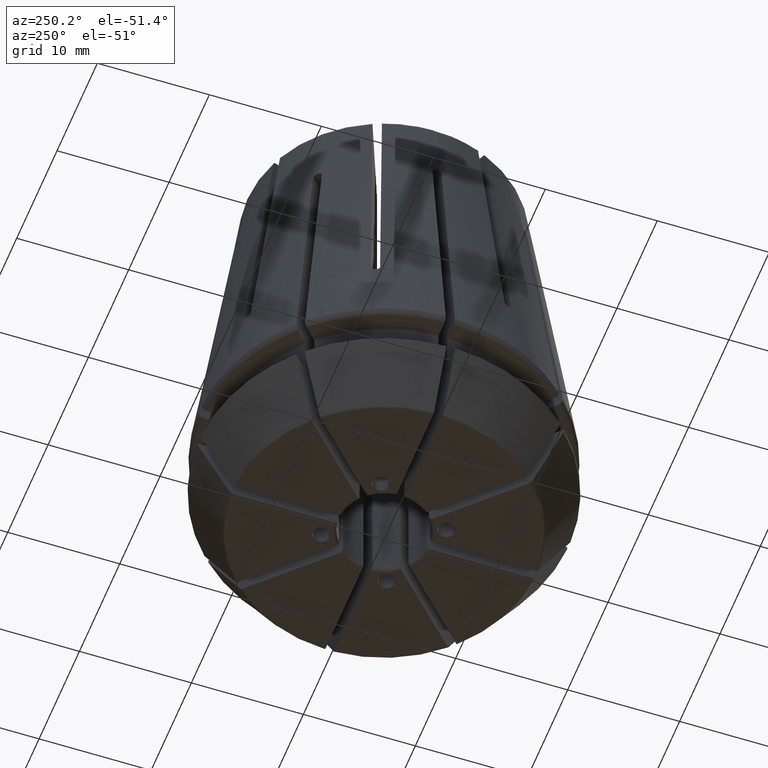
[diagram: clean part render]
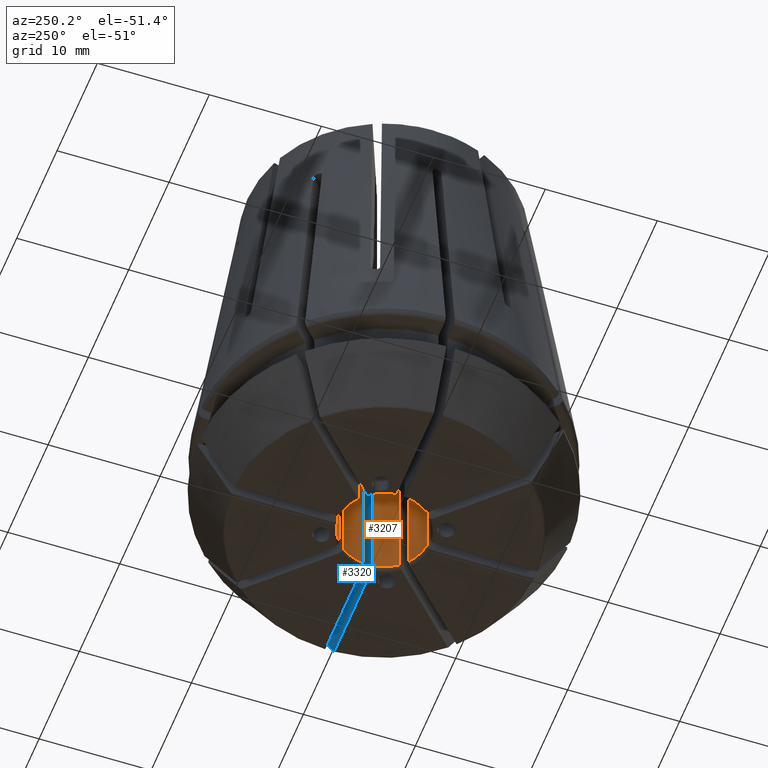
[diagram: same view with the hole feature highlighted: cylindrical wall and planar end face, labeled with their STEP entity ids]
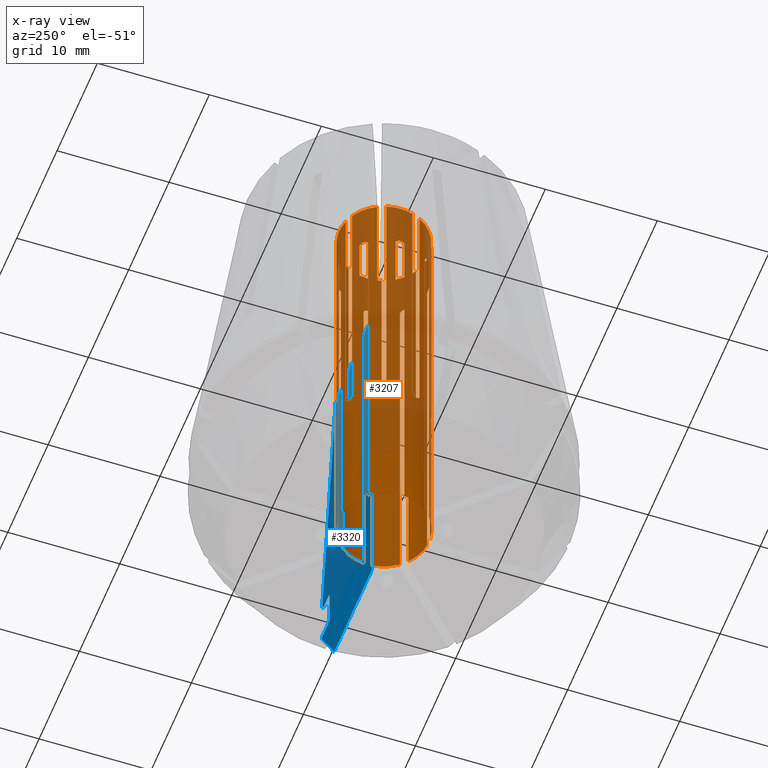
[diagram: x-ray of the same camera — body ghosted, the hole faces saturated]
A machine part, auxiliary view. The highlighted faces form one hole feature of diameter 8 mm: the cylindrical wall (entity #3207, orange) and its adjacent planar end face (entity #3320, blue) — they share a circular edge in the B-rep.
The next image is the same camera in x-ray (body ghosted, the hole faces saturated) — the bore reads through the body.
Wall:
#84=LINE('',#4960,#228);
#85=LINE('',#4969,#229);
#86=LINE('',#4973,#230);
#87=LINE('',#4981,#231);
#88=LINE('',#4985,#232);
#89=LINE('',#4993,#233);
#90=LINE('',#4997,#234);
#91=LINE('',#5005,#235);
#92=LINE('',#5009,#236);
#93=LINE('',#5017,#237);
#94=LINE('',#5021,#238);
#95=LINE('',#5029,#239);
#96=LINE('',#5033,#240);
#97=LINE('',#5041,#241);
#98=LINE('',#5045,#242);
#99=LINE('',#5053,#243);
#100=LINE('',#5056,#244);
#101=LINE('',#5065,#245);
#102=LINE('',#5069,#246);
#103=LINE('',#5077,#247);
#104=LINE('',#5081,#248);
#105=LINE('',#5089,#249);
#106=LINE('',#5093,#250);
#107=LINE('',#5101,#251);
#108=LINE('',#5105,#252);
#109=LINE('',#5113,#253);
#110=LINE('',#5117,#254);
#111=LINE('',#5125,#255);
#112=LINE('',#5129,#256);
#113=LINE('',#5137,#257);
#114=LINE('',#5141,#258);
#115=LINE('',#5149,#259);
#228=VECTOR('',#3813,1000.);
#229=VECTOR('',#3814,1000.);
#230=VECTOR('',#3817,1000.);
#231=VECTOR('',#3818,1000.);
#232=VECTOR('',#3821,1000.);
#233=VECTOR('',#3822,1000.);
#234=VECTOR('',#3825,1000.);
#235=VECTOR('',#3826,1000.);
#236=VECTOR('',#3829,1000.);
#237=VECTOR('',#3830,1000.);
#238=VECTOR('',#3833,1000.);
#239=VECTOR('',#3834,1000.);
#240=VECTOR('',#3837,1000.);
#241=VECTOR('',#3838,1000.);
#242=VECTOR('',#3841,1000.);
#243=VECTOR('',#3842,1000.);
#244=VECTOR('',#3845,1000.);
#245=VECTOR('',#3846,1000.);
#246=VECTOR('',#3849,1000.);
#247=VECTOR('',#3850,1000.);
#248=VECTOR('',#3853,1000.);
#249=VECTOR('',#3854,1000.);
#250=VECTOR('',#3857,1000.);
#251=VECTOR('',#3858,1000.);
#252=VECTOR('',#3861,1000.);
#253=VECTOR('',#3862,1000.);
#254=VECTOR('',#3865,1000.);
#255=VECTOR('',#3866,1000.);
#256=VECTOR('',#3869,1000.);
#257=VECTOR('',#3870,1000.);
#258=VECTOR('',#3873,1000.);
#259=VECTOR('',#3874,1000.);
#372=CYLINDRICAL_SURFACE('',#3422,4.);
#470=B_SPLINE_CURVE_WITH_KNOTS('',3,(#4963,#4964,#4965,#4966,#4967),
 .UNSPECIFIED.,.F.,.F.,(4,1,4),(-0.000624974076948497,9.21077996328661E-9,
0.000624992498508424),.UNSPECIFIED.);
#471=B_SPLINE_CURVE_WITH_KNOTS('',3,(#4975,#4976,#4977,#4978,#4979),
 .UNSPECIFIED.,.F.,.F.,(4,1,4),(-0.000624974076948496,9.21077996182294E-9,
0.000624992498508419),.UNSPECIFIED.);
#472=B_SPLINE_CURVE_WITH_KNOTS('',3,(#4987,#4988,#4989,#4990,#4991),
 .UNSPECIFIED.,.F.,.F.,(4,1,4),(-0.000624974076948497,9.21077996355766E-9,
0.000624992498508424),.UNSPECIFIED.);
#473=B_SPLINE_CURVE_WITH_KNOTS('',3,(#4999,#5000,#5001,#5002,#5003),
 .UNSPECIFIED.,.F.,.F.,(4,1,4),(-0.000624974076948506,9.21077996193136E-9,
0.00062499249850843),.UNSPECIFIED.);
#474=B_SPLINE_CURVE_WITH_KNOTS('',3,(#5011,#5012,#5013,#5014,#5015),
 .UNSPECIFIED.,.F.,.F.,(4,1,4),(-0.000624974076948499,9.21077996296135E-9,
0.000624992498508425),.UNSPECIFIED.);
#475=B_SPLINE_CURVE_WITH_KNOTS('',3,(#5023,#5024,#5025,#5026,#5027),
 .UNSPECIFIED.,.F.,.F.,(4,1,4),(-0.000624974076948497,9.21077997201444E-9,
0.000624992498508441),.UNSPECIFIED.);
#476=B_SPLINE_CURVE_WITH_KNOTS('',3,(#5035,#5036,#5037,#5038,#5039),
 .UNSPECIFIED.,.F.,.F.,(4,1,4),(-0.000624974076948498,9.21077996279872E-9,
0.000624992498508424),.UNSPECIFIED.);
#477=B_SPLINE_CURVE_WITH_KNOTS('',3,(#5047,#5048,#5049,#5050,#5051),
 .UNSPECIFIED.,.F.,.F.,(4,1,4),(-0.000624974076948511,9.21077996523818E-9,
0.000624992498508441),.UNSPECIFIED.);
#478=B_SPLINE_CURVE_WITH_KNOTS('',3,(#5059,#5060,#5061,#5062,#5063),
 .UNSPECIFIED.,.F.,.F.,(4,1,4),(-0.000624974076948512,9.21077996128084E-9,
0.000624992498508435),.UNSPECIFIED.);
#479=B_SPLINE_CURVE_WITH_KNOTS('',3,(#5071,#5072,#5073,#5074,#5075),
 .UNSPECIFIED.,.F.,.F.,(4,1,4),(-0.000624974076948523,9.2107799664308E-9,
0.000624992498508456),.UNSPECIFIED.);
#480=B_SPLINE_CURVE_WITH_KNOTS('',3,(#5083,#5084,#5085,#5086,#5087),
 .UNSPECIFIED.,.F.,.F.,(4,1,4),(-0.000624974076948522,9.21077996681027E-9,
0.000624992498508456),.UNSPECIFIED.);
#481=B_SPLINE_CURVE_WITH_KNOTS('',3,(#5095,#5096,#5097,#5098,#5099),
 .UNSPECIFIED.,.F.,.F.,(4,1,4),(-0.000624974076948522,9.21077996610554E-9,
0.000624992498508454),.UNSPECIFIED.);
#482=B_SPLINE_CURVE_WITH_KNOTS('',3,(#5107,#5108,#5109,#5110,#5111),
 .UNSPECIFIED.,.F.,.F.,(4,1,4),(-0.000624974076948523,9.21077996632238E-9,
0.000624992498508456),.UNSPECIFIED.);
#483=B_SPLINE_CURVE_WITH_KNOTS('',3,(#5119,#5120,#5121,#5122,#5123),
 .UNSPECIFIED.,.F.,.F.,(4,1,4),(-0.000624974076948513,9.21077996171452E-9,
0.000624992498508437),.UNSPECIFIED.);
#484=B_SPLINE_CURVE_WITH_KNOTS('',3,(#5131,#5132,#5133,#5134,#5135),
 .UNSPECIFIED.,.F.,.F.,(4,1,4),(-0.000624974076948512,9.21077996171452E-9,
0.000624992498508435),.UNSPECIFIED.);
#485=B_SPLINE_CURVE_WITH_KNOTS('',3,(#5143,#5144,#5145,#5146,#5147),
 .UNSPECIFIED.,.F.,.F.,(4,1,4),(-0.000624974076948512,9.21077996128084E-9,
0.000624992498508435),.UNSPECIFIED.);
#706=ORIENTED_EDGE('',*,*,#1766,.T.);
#707=ORIENTED_EDGE('',*,*,#1767,.T.);
#708=ORIENTED_EDGE('',*,*,#1768,.F.);
#709=ORIENTED_EDGE('',*,*,#1769,.T.);
#710=ORIENTED_EDGE('',*,*,#1770,.T.);
#711=ORIENTED_EDGE('',*,*,#1771,.T.);
#712=ORIENTED_EDGE('',*,*,#1772,.F.);
#713=ORIENTED_EDGE('',*,*,#1773,.T.);
#714=ORIENTED_EDGE('',*,*,#1774,.T.);
#715=ORIENTED_EDGE('',*,*,#1775,.T.);
#716=ORIENTED_EDGE('',*,*,#1776,.F.);
#717=ORIENTED_EDGE('',*,*,#1777,.T.);
#718=ORIENTED_EDGE('',*,*,#1778,.T.);
#719=ORIENTED_EDGE('',*,*,#1779,.T.);
#720=ORIENTED_EDGE('',*,*,#1780,.F.);
#721=ORIENTED_EDGE('',*,*,#1781,.T.);
#722=ORIENTED_EDGE('',*,*,#1782,.F.);
#723=ORIENTED_EDGE('',*,*,#1783,.T.);
#724=ORIENTED_EDGE('',*,*,#1784,.T.);
#725=ORIENTED_EDGE('',*,*,#1785,.T.);
#726=ORIENTED_EDGE('',*,*,#1786,.F.);
#727=ORIENTED_EDGE('',*,*,#1787,.T.);
#728=ORIENTED_EDGE('',*,*,#1788,.T.);
#729=ORIENTED_EDGE('',*,*,#1789,.T.);
#730=ORIENTED_EDGE('',*,*,#1790,.F.);
#731=ORIENTED_EDGE('',*,*,#1791,.T.);
#732=ORIENTED_EDGE('',*,*,#1792,.T.);
#733=ORIENTED_EDGE('',*,*,#1793,.T.);
#734=ORIENTED_EDGE('',*,*,#1794,.F.);
#735=ORIENTED_EDGE('',*,*,#1795,.T.);
#736=ORIENTED_EDGE('',*,*,#1796,.T.);
#737=ORIENTED_EDGE('',*,*,#1797,.T.);
#738=ORIENTED_EDGE('',*,*,#1798,.F.);
#739=ORIENTED_EDGE('',*,*,#1799,.T.);
#740=ORIENTED_EDGE('',*,*,#1800,.T.);
#741=ORIENTED_EDGE('',*,*,#1801,.T.);
#742=ORIENTED_EDGE('',*,*,#1802,.T.);
#743=ORIENTED_EDGE('',*,*,#1803,.T.);
#744=ORIENTED_EDGE('',*,*,#1804,.F.);
#745=ORIENTED_EDGE('',*,*,#1805,.T.);
#746=ORIENTED_EDGE('',*,*,#1806,.T.);
#747=ORIENTED_EDGE('',*,*,#1807,.T.);
#748=ORIENTED_EDGE('',*,*,#1808,.F.);
#749=ORIENTED_EDGE('',*,*,#1809,.T.);
#750=ORIENTED_EDGE('',*,*,#1810,.T.);
#751=ORIENTED_EDGE('',*,*,#1811,.T.);
#752=ORIENTED_EDGE('',*,*,#1812,.F.);
#753=ORIENTED_EDGE('',*,*,#1813,.T.);
#754=ORIENTED_EDGE('',*,*,#1814,.T.);
#755=ORIENTED_EDGE('',*,*,#1815,.T.);
#756=ORIENTED_EDGE('',*,*,#1816,.F.);
#757=ORIENTED_EDGE('',*,*,#1817,.T.);
#758=ORIENTED_EDGE('',*,*,#1818,.F.);
#759=ORIENTED_EDGE('',*,*,#1819,.T.);
#760=ORIENTED_EDGE('',*,*,#1820,.T.);
#761=ORIENTED_EDGE('',*,*,#1821,.T.);
#762=ORIENTED_EDGE('',*,*,#1822,.F.);
#763=ORIENTED_EDGE('',*,*,#1823,.T.);
#764=ORIENTED_EDGE('',*,*,#1824,.T.);
#765=ORIENTED_EDGE('',*,*,#1825,.T.);
#766=ORIENTED_EDGE('',*,*,#1826,.F.);
#767=ORIENTED_EDGE('',*,*,#1827,.T.);
#768=ORIENTED_EDGE('',*,*,#1828,.T.);
#769=ORIENTED_EDGE('',*,*,#1829,.T.);
#1766=EDGE_CURVE('',#2294,#2295,#84,.T.);
#1767=EDGE_CURVE('',#2295,#2296,#470,.T.);
#1768=EDGE_CURVE('',#2297,#2296,#85,.T.);
#1769=EDGE_CURVE('',#2297,#2298,#2602,.T.);
#1770=EDGE_CURVE('',#2298,#2299,#86,.T.);
#1771=EDGE_CURVE('',#2299,#2300,#471,.T.);
#1772=EDGE_CURVE('',#2301,#2300,#87,.T.);
#1773=EDGE_CURVE('',#2301,#2302,#2603,.T.);
#1774=EDGE_CURVE('',#2302,#2303,#88,.T.);
#1775=EDGE_CURVE('',#2303,#2304,#472,.T.);
#1776=EDGE_CURVE('',#2305,#2304,#89,.T.);
#1777=EDGE_CURVE('',#2305,#2306,#2604,.T.);
#1778=EDGE_CURVE('',#2306,#2307,#90,.T.);
#1779=EDGE_CURVE('',#2307,#2308,#473,.T.);
#1780=EDGE_CURVE('',#2309,#2308,#91,.T.);
#1781=EDGE_CURVE('',#2309,#2310,#2605,.T.);
#1782=EDGE_CURVE('',#2311,#2310,#92,.F.);
#1783=EDGE_CURVE('',#2311,#2312,#474,.T.);
#1784=EDGE_CURVE('',#2312,#2313,#93,.F.);
#1785=EDGE_CURVE('',#2313,#2314,#2606,.T.);
#1786=EDGE_CURVE('',#2315,#2314,#94,.F.);
#1787=EDGE_CURVE('',#2315,#2316,#475,.T.);
#1788=EDGE_CURVE('',#2316,#2317,#95,.F.);
#1789=EDGE_CURVE('',#2317,#2318,#2607,.T.);
#1790=EDGE_CURVE('',#2319,#2318,#96,.F.);
#1791=EDGE_CURVE('',#2319,#2320,#476,.T.);
#1792=EDGE_CURVE('',#2320,#2321,#97,.F.);
#1793=EDGE_CURVE('',#2321,#2322,#2608,.T.);
#1794=EDGE_CURVE('',#2323,#2322,#98,.F.);
#1795=EDGE_CURVE('',#2323,#2324,#477,.T.);
#1796=EDGE_CURVE('',#2324,#2325,#99,.F.);
#1797=EDGE_CURVE('',#2325,#2294,#2609,.T.);
#1798=EDGE_CURVE('',#2326,#2327,#100,.T.);
#1799=EDGE_CURVE('',#2326,#2328,#478,.T.);
#1800=EDGE_CURVE('',#2328,#2329,#101,.T.);
#1801=EDGE_CURVE('',#2329,#2330,#2610,.T.);
#1802=EDGE_CURVE('',#2330,#2331,#102,.F.);
#1803=EDGE_CURVE('',#2331,#2332,#479,.T.);
#1804=EDGE_CURVE('',#2333,#2332,#103,.F.);
#1805=EDGE_CURVE('',#2333,#2334,#2611,.T.);
#1806=EDGE_CURVE('',#2334,#2335,#104,.F.);
#1807=EDGE_CURVE('',#2335,#2336,#480,.T.);
#1808=EDGE_CURVE('',#2337,#2336,#105,.F.);
#1809=EDGE_CURVE('',#2337,#2338,#2612,.T.);
#1810=EDGE_CURVE('',#2338,#2339,#106,.F.);
#1811=EDGE_CURVE('',#2339,#2340,#481,.T.);
#1812=EDGE_CURVE('',#2341,#2340,#107,.F.);
#1813=EDGE_CURVE('',#2341,#2342,#2613,.T.);
#1814=EDGE_CURVE('',#2342,#2343,#108,.F.);
#1815=EDGE_CURVE('',#2343,#2344,#482,.T.);
#1816=EDGE_CURVE('',#2345,#2344,#109,.F.);
#1817=EDGE_CURVE('',#2345,#2346,#2614,.T.);
#1818=EDGE_CURVE('',#2347,#2346,#110,.T.);
#1819=EDGE_CURVE('',#2347,#2348,#483,.T.);
#1820=EDGE_CURVE('',#2348,#2349,#111,.T.);
#1821=EDGE_CURVE('',#2349,#2350,#2615,.T.);
#1822=EDGE_CURVE('',#2351,#2350,#112,.T.);
#1823=EDGE_CURVE('',#2351,#2352,#484,.T.);
#1824=EDGE_CURVE('',#2352,#2353,#113,.T.);
#1825=EDGE_CURVE('',#2353,#2354,#2616,.T.);
#1826=EDGE_CURVE('',#2355,#2354,#114,.T.);
#1827=EDGE_CURVE('',#2355,#2356,#485,.T.);
#1828=EDGE_CURVE('',#2356,#2357,#115,.T.);
#1829=EDGE_CURVE('',#2357,#2327,#2617,.T.);
#2294=VERTEX_POINT('',#4961);
#2295=VERTEX_POINT('',#4962);
#2296=VERTEX_POINT('',#4968);
#2297=VERTEX_POINT('',#4970);
#2298=VERTEX_POINT('',#4972);
#2299=VERTEX_POINT('',#4974);
#2300=VERTEX_POINT('',#4980);
#2301=VERTEX_POINT('',#4982);
#2302=VERTEX_POINT('',#4984);
#2303=VERTEX_POINT('',#4986);
#2304=VERTEX_POINT('',#4992);
#2305=VERTEX_POINT('',#4994);
#2306=VERTEX_POINT('',#4996);
#2307=VERTEX_POINT('',#4998);
#2308=VERTEX_POINT('',#5004);
#2309=VERTEX_POINT('',#5006);
#2310=VERTEX_POINT('',#5008);
#2311=VERTEX_POINT('',#5010);
#2312=VERTEX_POINT('',#5016);
#2313=VERTEX_POINT('',#5018);
#2314=VERTEX_POINT('',#5020);
#2315=VERTEX_POINT('',#5022);
#2316=VERTEX_POINT('',#5028);
#2317=VERTEX_POINT('',#5030);
#2318=VERTEX_POINT('',#5032);
#2319=VERTEX_POINT('',#5034);
#2320=VERTEX_POINT('',#5040);
#2321=VERTEX_POINT('',#5042);
#2322=VERTEX_POINT('',#5044);
#2323=VERTEX_POINT('',#5046);
#2324=VERTEX_POINT('',#5052);
#2325=VERTEX_POINT('',#5054);
#2326=VERTEX_POINT('',#5057);
#2327=VERTEX_POINT('',#5058);
#2328=VERTEX_POINT('',#5064);
#2329=VERTEX_POINT('',#5066);
#2330=VERTEX_POINT('',#5068);
#2331=VERTEX_POINT('',#5070);
#2332=VERTEX_POINT('',#5076);
#2333=VERTEX_POINT('',#5078);
#2334=VERTEX_POINT('',#5080);
#2335=VERTEX_POINT('',#5082);
#2336=VERTEX_POINT('',#5088);
#2337=VERTEX_POINT('',#5090);
#2338=VERTEX_POINT('',#5092);
#2339=VERTEX_POINT('',#5094);
#2340=VERTEX_POINT('',#5100);
#2341=VERTEX_POINT('',#5102);
#2342=VERTEX_POINT('',#5104);
#2343=VERTEX_POINT('',#5106);
#2344=VERTEX_POINT('',#5112);
#2345=VERTEX_POINT('',#5114);
#2346=VERTEX_POINT('',#5116);
#2347=VERTEX_POINT('',#5118);
#2348=VERTEX_POINT('',#5124);
#2349=VERTEX_POINT('',#5126);
#2350=VERTEX_POINT('',#5128);
#2351=VERTEX_POINT('',#5130);
#2352=VERTEX_POINT('',#5136);
#2353=VERTEX_POINT('',#5138);
#2354=VERTEX_POINT('',#5140);
#2355=VERTEX_POINT('',#5142);
#2356=VERTEX_POINT('',#5148);
#2357=VERTEX_POINT('',#5150);
#2602=CIRCLE('',#3423,4.);
#2603=CIRCLE('',#3424,4.);
#2604=CIRCLE('',#3425,4.);
#2605=CIRCLE('',#3426,4.);
#2606=CIRCLE('',#3427,4.);
#2607=CIRCLE('',#3428,4.);
#2608=CIRCLE('',#3429,4.);
#2609=CIRCLE('',#3430,4.);
#2610=CIRCLE('',#3431,4.);
#2611=CIRCLE('',#3432,4.);
#2612=CIRCLE('',#3433,4.);
#2613=CIRCLE('',#3434,4.);
#2614=CIRCLE('',#3435,4.);
#2615=CIRCLE('',#3436,4.);
#2616=CIRCLE('',#3437,4.);
#2617=CIRCLE('',#3438,4.);
#2764=EDGE_LOOP('',(#706,#707,#708,#709,#710,#711,#712,#713,#714,#715,#716,
#717,#718,#719,#720,#721,#722,#723,#724,#725,#726,#727,#728,#729,#730,#731,
#732,#733,#734,#735,#736,#737));
#2765=EDGE_LOOP('',(#738,#739,#740,#741,#742,#743,#744,#745,#746,#747,#748,
#749,#750,#751,#752,#753,#754,#755,#756,#757,#758,#759,#760,#761,#762,#763,
#764,#765,#766,#767,#768,#769));
#2952=FACE_BOUND('',#2764,.T.);
#2953=FACE_BOUND('',#2765,.T.);
#3207=ADVANCED_FACE('',(#2952,#2953),#372,.F.);
#3422=AXIS2_PLACEMENT_3D('',#4959,#3811,#3812);
#3423=AXIS2_PLACEMENT_3D('',#4971,#3815,#3816);
#3424=AXIS2_PLACEMENT_3D('',#4983,#3819,#3820);
#3425=AXIS2_PLACEMENT_3D('',#4995,#3823,#3824);
#3426=AXIS2_PLACEMENT_3D('',#5007,#3827,#3828);
#3427=AXIS2_PLACEMENT_3D('',#5019,#3831,#3832);
#3428=AXIS2_PLACEMENT_3D('',#5031,#3835,#3836);
#3429=AXIS2_PLACEMENT_3D('',#5043,#3839,#3840);
#3430=AXIS2_PLACEMENT_3D('',#5055,#3843,#3844);
#3431=AXIS2_PLACEMENT_3D('',#5067,#3847,#3848);
#3432=AXIS2_PLACEMENT_3D('',#5079,#3851,#3852);
#3433=AXIS2_PLACEMENT_3D('',#5091,#3855,#3856);
#3434=AXIS2_PLACEMENT_3D('',#5103,#3859,#3860);
#3435=AXIS2_PLACEMENT_3D('',#5115,#3863,#3864);
#3436=AXIS2_PLACEMENT_3D('',#5127,#3867,#3868);
#3437=AXIS2_PLACEMENT_3D('',#5139,#3871,#3872);
#3438=AXIS2_PLACEMENT_3D('',#5151,#3875,#3876);
#3811=DIRECTION('',(0.,0.,1.));
#3812=DIRECTION('',(1.,0.,0.));
#3813=DIRECTION('',(0.,0.,1.));
#3814=DIRECTION('',(0.,0.,1.));
#3815=DIRECTION('',(0.,0.,-1.));
#3816=DIRECTION('',(-1.,0.,0.));
#3817=DIRECTION('',(0.,0.,1.));
#3818=DIRECTION('',(0.,0.,1.));
#3819=DIRECTION('',(0.,0.,-1.));
#3820=DIRECTION('',(-1.,0.,0.));
#3821=DIRECTION('',(0.,0.,1.));
#3822=DIRECTION('',(0.,0.,1.));
#3823=DIRECTION('',(0.,0.,-1.));
#3824=DIRECTION('',(-1.,0.,0.));
#3825=DIRECTION('',(0.,0.,1.));
#3826=DIRECTION('',(0.,0.,1.));
#3827=DIRECTION('',(0.,0.,-1.));
#3828=DIRECTION('',(-1.,0.,0.));
#3829=DIRECTION('',(0.,0.,1.));
#3830=DIRECTION('',(0.,0.,1.));
#3831=DIRECTION('',(0.,0.,-1.));
#3832=DIRECTION('',(-1.,0.,0.));
#3833=DIRECTION('',(0.,0.,1.));
#3834=DIRECTION('',(0.,0.,1.));
#3835=DIRECTION('',(0.,0.,-1.));
#3836=DIRECTION('',(-1.,0.,0.));
#3837=DIRECTION('',(0.,0.,1.));
#3838=DIRECTION('',(0.,0.,1.));
#3839=DIRECTION('',(0.,0.,-1.));
#3840=DIRECTION('',(-1.,0.,0.));
#3841=DIRECTION('',(0.,0.,1.));
#3842=DIRECTION('',(0.,0.,1.));
#3843=DIRECTION('',(0.,0.,-1.));
#3844=DIRECTION('',(-1.,0.,0.));
#3845=DIRECTION('',(0.,0.,1.));
#3846=DIRECTION('',(0.,0.,1.));
#3847=DIRECTION('',(0.,0.,1.));
#3848=DIRECTION('',(1.,0.,0.));
#3849=DIRECTION('',(0.,0.,1.));
#3850=DIRECTION('',(0.,0.,1.));
#3851=DIRECTION('',(0.,0.,1.));
#3852=DIRECTION('',(1.,0.,0.));
#3853=DIRECTION('',(0.,0.,1.));
#3854=DIRECTION('',(0.,0.,1.));
#3855=DIRECTION('',(0.,0.,1.));
#3856=DIRECTION('',(1.,0.,0.));
#3857=DIRECTION('',(0.,0.,1.));
#3858=DIRECTION('',(0.,0.,1.));
#3859=DIRECTION('',(0.,0.,1.));
#3860=DIRECTION('',(1.,0.,0.));
#3861=DIRECTION('',(0.,0.,1.));
#3862=DIRECTION('',(0.,0.,1.));
#3863=DIRECTION('',(0.,0.,1.));
#3864=DIRECTION('',(1.,0.,0.));
#3865=DIRECTION('',(0.,0.,1.));
#3866=DIRECTION('',(0.,0.,1.));
#3867=DIRECTION('',(0.,0.,1.));
#3868=DIRECTION('',(1.,0.,0.));
#3869=DIRECTION('',(0.,0.,1.));
#3870=DIRECTION('',(0.,0.,1.));
#3871=DIRECTION('',(0.,0.,1.));
#3872=DIRECTION('',(1.,0.,0.));
#3873=DIRECTION('',(0.,0.,1.));
#3874=DIRECTION('',(0.,0.,1.));
#3875=DIRECTION('',(0.,0.,1.));
#3876=DIRECTION('',(1.,0.,0.));
#4959=CARTESIAN_POINT('',(0.,0.,60.));
#4960=CARTESIAN_POINT('',(-3.09709216836867,2.53140674341944,60.));
#4961=CARTESIAN_POINT('',(-3.09709216836867,2.53140674341944,-8.7));
#4962=CARTESIAN_POINT('',(-3.09709216836867,2.53140674341944,25.041513122087));
#4963=CARTESIAN_POINT('',(-3.09709216836867,2.53140674341944,25.041513122087));
#4964=CARTESIAN_POINT('',(-3.09709216836867,2.53140674341944,25.2528462119536));
#4965=CARTESIAN_POINT('',(-2.84259157986594,2.84261800729986,25.6291775510027));
#4966=CARTESIAN_POINT('',(-2.53140674341944,3.09709216836868,25.2528481564843));
#4967=CARTESIAN_POINT('',(-2.53140674341944,3.09709216836868,25.041513122087));
#4968=CARTESIAN_POINT('',(-2.53140674341943,3.09709216836868,25.041513122087));
#4969=CARTESIAN_POINT('',(-2.53140674341943,3.09709216836868,60.));
#4970=CARTESIAN_POINT('',(-2.53140674341943,3.09709216836868,-8.7));
#4971=CARTESIAN_POINT('',(0.,0.,-8.7));
#4972=CARTESIAN_POINT('',(-0.399999999999995,3.97994974842648,-8.7));
#4973=CARTESIAN_POINT('',(-0.399999999999995,3.97994974842648,60.));
#4974=CARTESIAN_POINT('',(-0.399999999999995,3.97994974842648,25.041513122087));
#4975=CARTESIAN_POINT('',(-0.399999999999995,3.97994974842648,25.0415131220871));
#4976=CARTESIAN_POINT('',(-0.399999999999995,3.97994974842648,25.2528462119536));
#4977=CARTESIAN_POINT('',(1.8687017734598E-5,4.02005025155171,25.6291775510027));
#4978=CARTESIAN_POINT('',(0.400000000000005,3.97994974842648,25.2528481564843));
#4979=CARTESIAN_POINT('',(0.400000000000005,3.97994974842648,25.0415131220871));
#4980=CARTESIAN_POINT('',(0.400000000000005,3.97994974842648,25.041513122087));
#4981=CARTESIAN_POINT('',(0.400000000000005,3.97994974842648,60.));
#4982=CARTESIAN_POINT('',(0.400000000000005,3.97994974842648,-8.7));
#4983=CARTESIAN_POINT('',(0.,0.,-8.7));
#4984=CARTESIAN_POINT('',(2.53140674341944,3.09709216836868,-8.7));
#4985=CARTESIAN_POINT('',(2.53140674341944,3.09709216836867,60.));
#4986=CARTESIAN_POINT('',(2.53140674341944,3.09709216836867,25.041513122087));
#4987=CARTESIAN_POINT('',(2.53140674341944,3.09709216836867,25.041513122087));
#4988=CARTESIAN_POINT('',(2.53140674341944,3.09709216836867,25.2528462119536));
#4989=CARTESIAN_POINT('',(2.84261800729986,2.84259157986594,25.6291775510027));
#4990=CARTESIAN_POINT('',(3.09709216836868,2.53140674341944,25.2528481564843));
#4991=CARTESIAN_POINT('',(3.09709216836868,2.53140674341944,25.041513122087));
#4992=CARTESIAN_POINT('',(3.09709216836868,2.53140674341944,25.041513122087));
#4993=CARTESIAN_POINT('',(3.09709216836868,2.53140674341944,60.));
#4994=CARTESIAN_POINT('',(3.09709216836868,2.53140674341944,-8.7));
#4995=CARTESIAN_POINT('',(0.,0.,-8.7));
#4996=CARTESIAN_POINT('',(3.97994974842615,0.4,-8.70000000000003));
#4997=CARTESIAN_POINT('',(3.97994974842648,0.4,60.));
#4998=CARTESIAN_POINT('',(3.97994974842648,0.4,25.041513122087));
#4999=CARTESIAN_POINT('',(3.97994974842648,0.4,25.041513122087));
#5000=CARTESIAN_POINT('',(3.97994974842648,0.4,25.2528462119536));
#5001=CARTESIAN_POINT('',(4.02005025155171,-1.86870177301256E-5,25.6291775510027));
#5002=CARTESIAN_POINT('',(3.97994974842648,-0.4,25.2528481564843));
#5003=CARTESIAN_POINT('',(3.97994974842648,-0.4,25.041513122087));
#5004=CARTESIAN_POINT('',(3.97994974842648,-0.4,25.041513122087));
#5005=CARTESIAN_POINT('',(3.97994974842648,-0.4,60.));
#5006=CARTESIAN_POINT('',(3.97994974842615,-0.4,-8.70000000000003));
#5007=CARTESIAN_POINT('',(0.,0.,-8.7));
#5008=CARTESIAN_POINT('',(3.09709216836868,-2.53140674341943,-8.7));
#5009=CARTESIAN_POINT('',(3.09709216836868,-2.53140674341943,60.));
#5010=CARTESIAN_POINT('',(3.09709216836868,-2.53140674341943,25.041513122087));
#5011=CARTESIAN_POINT('',(3.09709216836868,-2.53140674341943,25.041513122087));
#5012=CARTESIAN_POINT('',(3.09709216836868,-2.53140674341943,25.2528462119536));
#5013=CARTESIAN_POINT('',(2.84259157986595,-2.84261800729986,25.6291775510027));
#5014=CARTESIAN_POINT('',(2.53140674341944,-3.09709216836867,25.2528481564843));
#5015=CARTESIAN_POINT('',(2.53140674341944,-3.09709216836867,25.041513122087));
#5016=CARTESIAN_POINT('',(2.53140674341944,-3.09709216836867,25.041513122087));
#5017=CARTESIAN_POINT('',(2.53140674341944,-3.09709216836867,60.));
#5018=CARTESIAN_POINT('',(2.53140674341944,-3.09709216836867,-8.7));
#5019=CARTESIAN_POINT('',(0.,0.,-8.7));
#5020=CARTESIAN_POINT('',(0.400000000000006,-3.97994974842644,-8.7));
#5021=CARTESIAN_POINT('',(0.400000000000006,-3.97994974842648,60.));
#5022=CARTESIAN_POINT('',(0.400000000000006,-3.97994974842648,25.041513122087));
#5023=CARTESIAN_POINT('',(0.400000000000006,-3.97994974842648,25.041513122087));
#5024=CARTESIAN_POINT('',(0.400000000000006,-3.97994974842648,25.2528462119536));
#5025=CARTESIAN_POINT('',(-1.86870177446539E-5,-4.02005025155171,25.6291775510027));
#5026=CARTESIAN_POINT('',(-0.399999999999994,-3.97994974842648,25.2528481564843));
#5027=CARTESIAN_POINT('',(-0.399999999999994,-3.97994974842648,25.041513122087));
#5028=CARTESIAN_POINT('',(-0.399999999999994,-3.97994974842648,25.041513122087));
#5029=CARTESIAN_POINT('',(-0.399999999999994,-3.97994974842648,60.));
#5030=CARTESIAN_POINT('',(-0.399999999999994,-3.97994974842644,-8.7));
#5031=CARTESIAN_POINT('',(0.,0.,-8.7));
#5032=CARTESIAN_POINT('',(-2.53140674341944,-3.09709216836868,-8.7));
#5033=CARTESIAN_POINT('',(-2.53140674341944,-3.09709216836868,60.));
#5034=CARTESIAN_POINT('',(-2.53140674341944,-3.09709216836868,25.041513122087));
#5035=CARTESIAN_POINT('',(-2.53140674341944,-3.09709216836868,25.0415131220871));
#5036=CARTESIAN_POINT('',(-2.53140674341944,-3.09709216836868,25.2528462119536));
#5037=CARTESIAN_POINT('',(-2.84261800729986,-2.84259157986595,25.6291775510027));
#5038=CARTESIAN_POINT('',(-3.09709216836867,-2.53140674341944,25.2528481564843));
#5039=CARTESIAN_POINT('',(-3.09709216836867,-2.53140674341944,25.041513122087));
#5040=CARTESIAN_POINT('',(-3.09709216836867,-2.53140674341944,25.041513122087));
#5041=CARTESIAN_POINT('',(-3.09709216836867,-2.53140674341944,60.));
#5042=CARTESIAN_POINT('',(-3.09709216836867,-2.53140674341944,-8.7));
#5043=CARTESIAN_POINT('',(0.,0.,-8.7));
#5044=CARTESIAN_POINT('',(-3.97994974842648,-0.4,-8.7));
#5045=CARTESIAN_POINT('',(-3.97994974842648,-0.4,60.));
#5046=CARTESIAN_POINT('',(-3.97994974842648,-0.4,25.041513122087));
#5047=CARTESIAN_POINT('',(-3.97994974842648,-0.4,25.041513122087));
#5048=CARTESIAN_POINT('',(-3.97994974842648,-0.4,25.2528462119536));
#5049=CARTESIAN_POINT('',(-4.02005025155171,1.8687017736414E-5,25.6291775510027));
#5050=CARTESIAN_POINT('',(-3.97994974842648,0.4,25.2528481564843));
#5051=CARTESIAN_POINT('',(-3.97994974842648,0.4,25.041513122087));
#5052=CARTESIAN_POINT('',(-3.97994974842648,0.4,25.041513122087));
#5053=CARTESIAN_POINT('',(-3.97994974842648,0.4,60.));
#5054=CARTESIAN_POINT('',(-3.97994974842648,0.4,-8.7));
#5055=CARTESIAN_POINT('',(0.,0.,-8.7));
#5056=CARTESIAN_POINT('',(-3.52392074004863,1.89261264337294,60.));
#5057=CARTESIAN_POINT('',(-3.52392074004863,1.89261264337294,5.78069770241094));
#5058=CARTESIAN_POINT('',(-3.52392074004863,1.89261264337294,29.8009618943233));
#5059=CARTESIAN_POINT('',(-3.52392074004863,1.89261264337294,5.78069770241094));
#5060=CARTESIAN_POINT('',(-3.52392074004863,1.89261264337294,5.56936461254438));
#5061=CARTESIAN_POINT('',(-3.71404929828756,1.53838936399075,5.19303327349528));
#5062=CARTESIAN_POINT('',(-3.83006748594071,1.15350901736391,5.56936266801368));
#5063=CARTESIAN_POINT('',(-3.83006748594071,1.15350901736391,5.78069770241094));
#5064=CARTESIAN_POINT('',(-3.8300674859407,1.15350901736391,5.78069770241094));
#5065=CARTESIAN_POINT('',(-3.8300674859407,1.15350901736391,60.));
#5066=CARTESIAN_POINT('',(-3.8300674859407,1.15350901736391,29.8009618943233));
#5067=CARTESIAN_POINT('',(0.,0.,29.8009618943233));
#5068=CARTESIAN_POINT('',(-3.83006748594071,-1.15350901736391,29.8009618943233));
#5069=CARTESIAN_POINT('',(-3.83006748594071,-1.15350901736391,60.));
#5070=CARTESIAN_POINT('',(-3.83006748594071,-1.15350901736391,5.78069770241095));
#5071=CARTESIAN_POINT('',(-3.83006748594071,-1.15350901736391,5.78069770241095));
#5072=CARTESIAN_POINT('',(-3.8300674859407,-1.15350901736391,5.56936461254439));
#5073=CARTESIAN_POINT('',(-3.71403499586339,-1.53842389309717,5.19303327349527));
#5074=CARTESIAN_POINT('',(-3.52392074004863,-1.89261264337294,5.56936266801369));
#5075=CARTESIAN_POINT('',(-3.52392074004863,-1.89261264337294,5.78069770241095));
#5076=CARTESIAN_POINT('',(-3.52392074004863,-1.89261264337294,5.78069770241095));
#5077=CARTESIAN_POINT('',(-3.52392074004863,-1.89261264337294,60.));
#5078=CARTESIAN_POINT('',(-3.52392074004863,-1.89261264337294,29.8009618943233));
#5079=CARTESIAN_POINT('',(0.,0.,29.8009618943233));
#5080=CARTESIAN_POINT('',(-1.89261264337293,-3.52392074004864,29.8009618943233));
#5081=CARTESIAN_POINT('',(-1.89261264337293,-3.52392074004864,60.));
#5082=CARTESIAN_POINT('',(-1.89261264337293,-3.52392074004864,5.78069770241095));
#5083=CARTESIAN_POINT('',(-1.89261264337293,-3.52392074004864,5.78069770241095));
#5084=CARTESIAN_POINT('',(-1.89261264337293,-3.52392074004864,5.56936461254439));
#5085=CARTESIAN_POINT('',(-1.53838936399074,-3.71404929828757,5.19303327349527));
#5086=CARTESIAN_POINT('',(-1.1535090173639,-3.83006748594071,5.56936266801369));
#5087=CARTESIAN_POINT('',(-1.1535090173639,-3.83006748594071,5.78069770241095));
#5088=CARTESIAN_POINT('',(-1.1535090173639,-3.83006748594071,5.78069770241095));
#5089=CARTESIAN_POINT('',(-1.1535090173639,-3.83006748594071,60.));
#5090=CARTESIAN_POINT('',(-1.1535090173639,-3.83006748594071,29.8009618943233));
#5091=CARTESIAN_POINT('',(0.,0.,29.8009618943233));
#5092=CARTESIAN_POINT('',(1.15350901736391,-3.8300674859407,29.8009618943233));
#5093=CARTESIAN_POINT('',(1.15350901736391,-3.8300674859407,60.));
#5094=CARTESIAN_POINT('',(1.15350901736391,-3.8300674859407,5.78069770241095));
#5095=CARTESIAN_POINT('',(1.15350901736391,-3.8300674859407,5.78069770241095));
#5096=CARTESIAN_POINT('',(1.15350901736391,-3.8300674859407,5.56936461254439));
#5097=CARTESIAN_POINT('',(1.53842389309717,-3.71403499586339,5.19303327349527));
#5098=CARTESIAN_POINT('',(1.89261264337294,-3.52392074004863,5.56936266801369));
#5099=CARTESIAN_POINT('',(1.89261264337294,-3.52392074004863,5.78069770241095));
#5100=CARTESIAN_POINT('',(1.89261264337294,-3.52392074004863,5.78069770241095));
#5101=CARTESIAN_POINT('',(1.89261264337294,-3.52392074004863,60.));
#5102=CARTESIAN_POINT('',(1.89261264337294,-3.52392074004863,29.8009618943233));
#5103=CARTESIAN_POINT('',(0.,0.,29.8009618943233));
#5104=CARTESIAN_POINT('',(3.52392074004864,-1.89261264337293,29.8009618943233));
#5105=CARTESIAN_POINT('',(3.52392074004864,-1.89261264337293,60.));
#5106=CARTESIAN_POINT('',(3.52392074004864,-1.89261264337293,5.78069770241095));
#5107=CARTESIAN_POINT('',(3.52392074004864,-1.89261264337293,5.78069770241095));
#5108=CARTESIAN_POINT('',(3.52392074004864,-1.89261264337293,5.56936461254439));
#5109=CARTESIAN_POINT('',(3.71404929828757,-1.53838936399074,5.19303327349527));
#5110=CARTESIAN_POINT('',(3.83006748594071,-1.1535090173639,5.56936266801369));
#5111=CARTESIAN_POINT('',(3.83006748594071,-1.1535090173639,5.78069770241095));
#5112=CARTESIAN_POINT('',(3.83006748594071,-1.1535090173639,5.78069770241095));
#5113=CARTESIAN_POINT('',(3.83006748594071,-1.1535090173639,60.));
#5114=CARTESIAN_POINT('',(3.83006748594071,-1.1535090173639,29.8009618943233));
#5115=CARTESIAN_POINT('',(0.,0.,29.8009618943233));
#5116=CARTESIAN_POINT('',(3.83006748594071,1.15350901736391,29.8009618943233));
#5117=CARTESIAN_POINT('',(3.83006748594071,1.15350901736391,60.));
#5118=CARTESIAN_POINT('',(3.83006748594071,1.15350901736391,5.78069770241094));
#5119=CARTESIAN_POINT('',(3.83006748594071,1.15350901736391,5.78069770241094));
#5120=CARTESIAN_POINT('',(3.83006748594071,1.15350901736391,5.56936461254438));
#5121=CARTESIAN_POINT('',(3.71403499586339,1.53842389309716,5.19303327349528));
#5122=CARTESIAN_POINT('',(3.52392074004863,1.89261264337294,5.56936266801368));
#5123=CARTESIAN_POINT('',(3.52392074004863,1.89261264337294,5.78069770241094));
#5124=CARTESIAN_POINT('',(3.52392074004863,1.89261264337294,5.78069770241094));
#5125=CARTESIAN_POINT('',(3.52392074004863,1.89261264337294,60.));
#5126=CARTESIAN_POINT('',(3.52392074004863,1.89261264337294,29.8009618943233));
#5127=CARTESIAN_POINT('',(0.,0.,29.8009618943233));
#5128=CARTESIAN_POINT('',(1.89261264337294,3.52392074004863,29.8009618943233));
#5129=CARTESIAN_POINT('',(1.89261264337294,3.52392074004863,60.));
#5130=CARTESIAN_POINT('',(1.89261264337294,3.52392074004863,5.78069770241094));
#5131=CARTESIAN_POINT('',(1.89261264337294,3.52392074004863,5.78069770241094));
#5132=CARTESIAN_POINT('',(1.89261264337294,3.52392074004863,5.56936461254438));
#5133=CARTESIAN_POINT('',(1.53838936399075,3.71404929828756,5.19303327349528));
#5134=CARTESIAN_POINT('',(1.15350901736391,3.8300674859407,5.56936266801368));
#5135=CARTESIAN_POINT('',(1.15350901736391,3.8300674859407,5.78069770241094));
#5136=CARTESIAN_POINT('',(1.15350901736391,3.8300674859407,5.78069770241094));
#5137=CARTESIAN_POINT('',(1.15350901736391,3.8300674859407,60.));
#5138=CARTESIAN_POINT('',(1.15350901736391,3.8300674859407,29.8009618943233));
#5139=CARTESIAN_POINT('',(0.,0.,29.8009618943233));
#5140=CARTESIAN_POINT('',(-1.1535090173639,3.83006748594071,29.8009618943233));
#5141=CARTESIAN_POINT('',(-1.1535090173639,3.83006748594071,60.));
#5142=CARTESIAN_POINT('',(-1.1535090173639,3.83006748594071,5.78069770241094));
#5143=CARTESIAN_POINT('',(-1.1535090173639,3.83006748594071,5.78069770241094));
#5144=CARTESIAN_POINT('',(-1.1535090173639,3.83006748594071,5.56936461254438));
#5145=CARTESIAN_POINT('',(-1.53842389309715,3.71403499586339,5.19303327349528));
#5146=CARTESIAN_POINT('',(-1.89261264337293,3.52392074004864,5.56936266801368));
#5147=CARTESIAN_POINT('',(-1.89261264337293,3.52392074004864,5.78069770241094));
#5148=CARTESIAN_POINT('',(-1.89261264337293,3.52392074004864,5.78069770241094));
#5149=CARTESIAN_POINT('',(-1.89261264337293,3.52392074004864,60.));
#5150=CARTESIAN_POINT('',(-1.89261264337293,3.52392074004864,29.8009618943233));
#5151=CARTESIAN_POINT('',(0.,0.,29.8009618943233));
End face:
#52=PLANE('',#3651);
#91=LINE('',#5005,#235);
#121=LINE('',#5212,#265);
#123=LINE('',#5236,#267);
#125=LINE('',#5245,#269);
#127=LINE('',#5276,#271);
#129=LINE('',#5307,#273);
#235=VECTOR('',#3826,1000.);
#265=VECTOR('',#3906,1000.);
#267=VECTOR('',#3920,1000.);
#269=VECTOR('',#3928,1000.);
#271=VECTOR('',#3944,1000.);
#273=VECTOR('',#3954,1000.);
#429=B_SPLINE_CURVE_WITH_KNOTS('',3,(#4704,#4705,#4706,#4707),
 .UNSPECIFIED.,.F.,.F.,(4,4),(0.0219629442518745,0.0456655781271856),
 .UNSPECIFIED.);
#495=B_SPLINE_CURVE_WITH_KNOTS('',3,(#5226,#5227,#5228,#5229),
 .UNSPECIFIED.,.F.,.F.,(4,4),(0.0175621308026154,0.0234191693475339),
 .UNSPECIFIED.);
#497=B_SPLINE_CURVE_WITH_KNOTS('',3,(#5253,#5254,#5255,#5256),
 .UNSPECIFIED.,.F.,.F.,(4,4),(0.00105564826232067,0.001368138821546),
 .UNSPECIFIED.);
#499=B_SPLINE_CURVE_WITH_KNOTS('',3,(#5262,#5263,#5264,#5265),
 .UNSPECIFIED.,.F.,.F.,(4,4),(0.00121268017135878,0.00152515413905882),
 .UNSPECIFIED.);
#501=B_SPLINE_CURVE_WITH_KNOTS('',3,(#5282,#5283,#5284,#5285,#5286),
 .UNSPECIFIED.,.F.,.F.,(4,1,4),(0.000663284869690957,0.001046386329492,
0.00142948778929304),.UNSPECIFIED.);
#503=B_SPLINE_CURVE_WITH_KNOTS('',3,(#5292,#5293,#5294,#5295),
 .UNSPECIFIED.,.F.,.F.,(4,4),(0.000183050237036037,0.000443696799056435),
 .UNSPECIFIED.);
#505=B_SPLINE_CURVE_WITH_KNOTS('',3,(#5301,#5302,#5303,#5304),
 .UNSPECIFIED.,.F.,.F.,(4,4),(0.00238924647897748,0.00301549980471671),
 .UNSPECIFIED.);
#1222=ORIENTED_EDGE('',*,*,#1780,.T.);
#1223=ORIENTED_EDGE('',*,*,#2154,.T.);
#1224=ORIENTED_EDGE('',*,*,#1710,.F.);
#1225=ORIENTED_EDGE('',*,*,#1872,.F.);
#1226=ORIENTED_EDGE('',*,*,#1856,.T.);
#1227=ORIENTED_EDGE('',*,*,#1863,.T.);
#1228=ORIENTED_EDGE('',*,*,#1860,.T.);
#1229=ORIENTED_EDGE('',*,*,#1865,.T.);
#1230=ORIENTED_EDGE('',*,*,#1848,.T.);
#1231=ORIENTED_EDGE('',*,*,#1878,.F.);
#1232=ORIENTED_EDGE('',*,*,#1853,.F.);
#1233=ORIENTED_EDGE('',*,*,#1874,.F.);
#1234=ORIENTED_EDGE('',*,*,#1870,.F.);
#1235=ORIENTED_EDGE('',*,*,#1876,.F.);
#1710=EDGE_CURVE('',#2242,#2243,#429,.F.);
#1780=EDGE_CURVE('',#2309,#2308,#91,.T.);
#1848=EDGE_CURVE('',#2369,#2368,#121,.T.);
#1853=EDGE_CURVE('',#2373,#2371,#495,.T.);
#1856=EDGE_CURVE('',#2377,#2376,#123,.T.);
#1860=EDGE_CURVE('',#2381,#2380,#125,.F.);
#1863=EDGE_CURVE('',#2376,#2381,#497,.T.);
#1865=EDGE_CURVE('',#2380,#2369,#499,.T.);
#1870=EDGE_CURVE('',#2386,#2383,#127,.T.);
#1872=EDGE_CURVE('',#2377,#2242,#501,.T.);
#1874=EDGE_CURVE('',#2383,#2373,#503,.T.);
#1876=EDGE_CURVE('',#2309,#2386,#505,.T.);
#1878=EDGE_CURVE('',#2371,#2368,#129,.T.);
#2154=EDGE_CURVE('',#2308,#2243,#2718,.T.);
#2242=VERTEX_POINT('',#4703);
#2243=VERTEX_POINT('',#4708);
#2308=VERTEX_POINT('',#5004);
#2309=VERTEX_POINT('',#5006);
#2368=VERTEX_POINT('',#5211);
#2369=VERTEX_POINT('',#5213);
#2371=VERTEX_POINT('',#5218);
#2373=VERTEX_POINT('',#5225);
#2376=VERTEX_POINT('',#5235);
#2377=VERTEX_POINT('',#5237);
#2380=VERTEX_POINT('',#5244);
#2381=VERTEX_POINT('',#5246);
#2383=VERTEX_POINT('',#5270);
#2386=VERTEX_POINT('',#5275);
#2718=CIRCLE('',#3652,74.6);
#2882=EDGE_LOOP('',(#1222,#1223,#1224,#1225,#1226,#1227,#1228,#1229,#1230,
#1231,#1232,#1233,#1234,#1235));
#3070=FACE_BOUND('',#2882,.T.);
#3320=ADVANCED_FACE('',(#3070),#52,.T.);
#3651=AXIS2_PLACEMENT_3D('',#6172,#4397,#4398);
#3652=AXIS2_PLACEMENT_3D('',#6173,#4399,#4400);
#3826=DIRECTION('',(0.,0.,1.));
#3906=DIRECTION('',(1.,0.,0.));
#3920=DIRECTION('',(-1.,0.,0.));
#3928=DIRECTION('',(0.,0.,1.));
#3944=DIRECTION('',(1.,0.,0.));
#3954=DIRECTION('',(0.,0.,1.));
#4397=DIRECTION('',(0.,1.,0.));
#4398=DIRECTION('',(1.,0.,0.));
#4399=DIRECTION('',(0.,1.,0.));
#4400=DIRECTION('',(1.,0.,0.));
#4703=CARTESIAN_POINT('',(16.4230843777152,-0.4,0.512627895432022));
#4704=CARTESIAN_POINT('',(13.1231148082426,-0.4,23.984420616664));
#4705=CARTESIAN_POINT('',(14.2232052726411,-0.4,16.1605038544638));
#4706=CARTESIAN_POINT('',(15.3231749137865,-0.4,8.33657010504512));
#4707=CARTESIAN_POINT('',(16.4230843777152,-0.4,0.512627895432032));
#4708=CARTESIAN_POINT('',(13.1231148082426,-0.4,23.984420616664));
#5004=CARTESIAN_POINT('',(3.97994974842648,-0.4,25.041513122087));
#5005=CARTESIAN_POINT('',(3.97994974842648,-0.4,60.));
#5006=CARTESIAN_POINT('',(3.97994974842615,-0.4,-8.70000000000003));
#5211=CARTESIAN_POINT('',(16.4951508025844,-0.4,-3.60000000000001));
#5212=CARTESIAN_POINT('',(16.5690598923241,-0.4,-3.6));
#5213=CARTESIAN_POINT('',(14.7945936071255,-0.4,-3.6));
#5218=CARTESIAN_POINT('',(16.4951508025844,-0.4,-3.90310889132457));
#5225=CARTESIAN_POINT('',(13.5658464218754,-0.4,-8.97499999999999));
#5226=CARTESIAN_POINT('',(13.5658464218754,-0.4,-8.975));
#5227=CARTESIAN_POINT('',(14.5423376956632,-0.4,-7.2844022549167));
#5228=CARTESIAN_POINT('',(15.5187624631089,-0.4,-5.59376608862996));
#5229=CARTESIAN_POINT('',(16.4951508025844,-0.4,-3.90310889132457));
#5235=CARTESIAN_POINT('',(14.7945936071255,-0.4,3.74866183560786E-13));
#5236=CARTESIAN_POINT('',(14.6,-0.4,1.85288457211878E-19));
#5237=CARTESIAN_POINT('',(15.9773279060022,-0.4,0.));
#5244=CARTESIAN_POINT('',(14.5945195193264,-0.4,-3.4));
#5245=CARTESIAN_POINT('',(14.5945195193264,-0.4,60.));
#5246=CARTESIAN_POINT('',(14.5945195193264,-0.4,-0.199999999999999));
#5253=CARTESIAN_POINT('',(14.7945936071255,-0.4,5.27953340597406E-15));
#5254=CARTESIAN_POINT('',(14.6901490141245,-0.4,-2.73333143292115E-14));
#5255=CARTESIAN_POINT('',(14.5945195193264,-0.4,-9.54691445541918E-02));
#5256=CARTESIAN_POINT('',(14.5945195193264,-0.4,-0.199999999999999));
#5262=CARTESIAN_POINT('',(14.5945195193264,-0.4,-3.4));
#5263=CARTESIAN_POINT('',(14.5945195193264,-0.4,-3.5054705281755));
#5264=CARTESIAN_POINT('',(14.6894203741337,-0.4,-3.6));
#5265=CARTESIAN_POINT('',(14.7945936071255,-0.4,-3.6));
#5270=CARTESIAN_POINT('',(13.3492444482022,-0.4,-9.1));
#5275=CARTESIAN_POINT('',(4.38178046004133,-0.4,-9.1));
#5276=CARTESIAN_POINT('',(0.,-0.4,-9.1));
#5282=CARTESIAN_POINT('',(15.9773279060022,-0.4,-9.8018478948339E-15));
#5283=CARTESIAN_POINT('',(16.1051154837453,-0.4,-8.81662073461514E-15));
#5284=CARTESIAN_POINT('',(16.3608781196666,-0.4,0.116197199525972));
#5285=CARTESIAN_POINT('',(16.4408637216799,-0.4,0.386158795686454));
#5286=CARTESIAN_POINT('',(16.4230843777152,-0.4,0.512627895432022));
#5292=CARTESIAN_POINT('',(13.3492444482022,-0.4,-9.1));
#5293=CARTESIAN_POINT('',(13.4366347931309,-0.4,-9.1));
#5294=CARTESIAN_POINT('',(13.5222743876865,-0.4,-9.05043619152155));
#5295=CARTESIAN_POINT('',(13.5658464218754,-0.4,-8.97499999999999));
#5301=CARTESIAN_POINT('',(3.97994974842648,-0.4,-8.70000000000005));
#5302=CARTESIAN_POINT('',(3.9799497484265,-0.4,-8.9094406036939));
#5303=CARTESIAN_POINT('',(4.17206782242996,-0.4,-9.1));
#5304=CARTESIAN_POINT('',(4.38178046004133,-0.4,-9.1));
#5307=CARTESIAN_POINT('',(16.4951508025844,-0.4,60.));
#6172=CARTESIAN_POINT('',(0.,-0.4,-49.4522450056917));
#6173=CARTESIAN_POINT('',(7.34763812293427E-15,-0.4,-49.4522450056917));